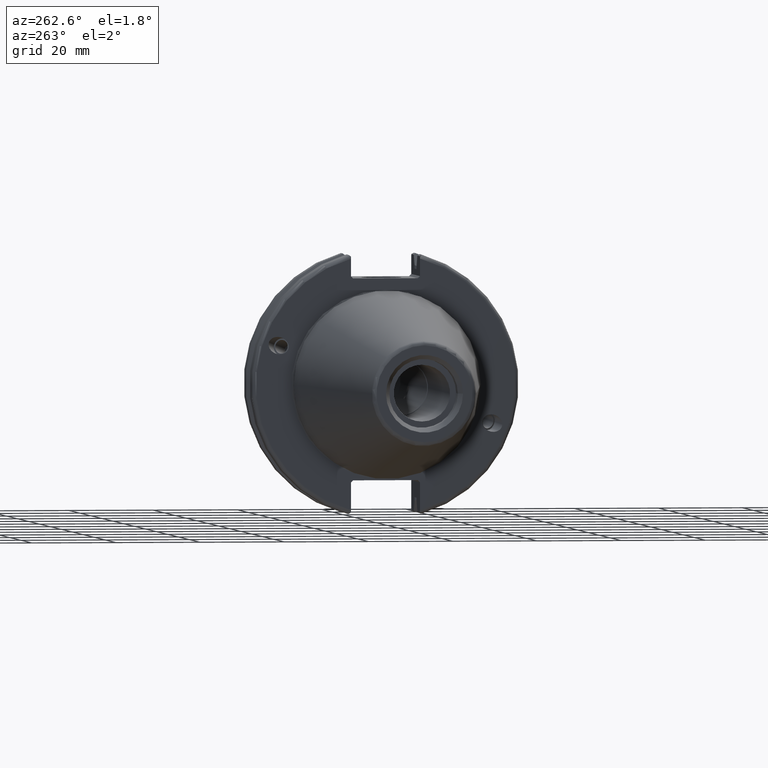
[diagram: clean part render]
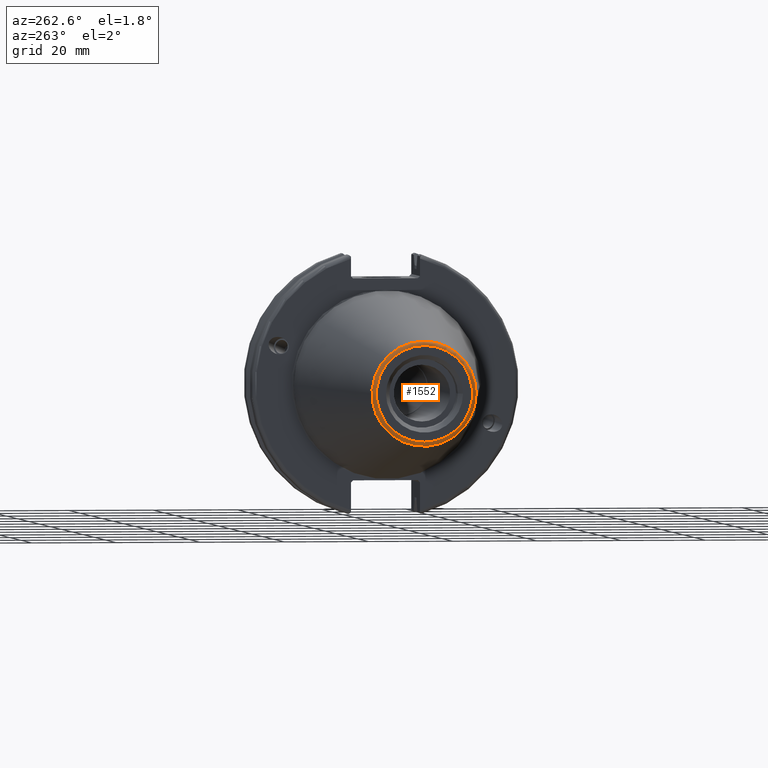
[diagram: same view with one face highlighted and labeled with its STEP entity id]
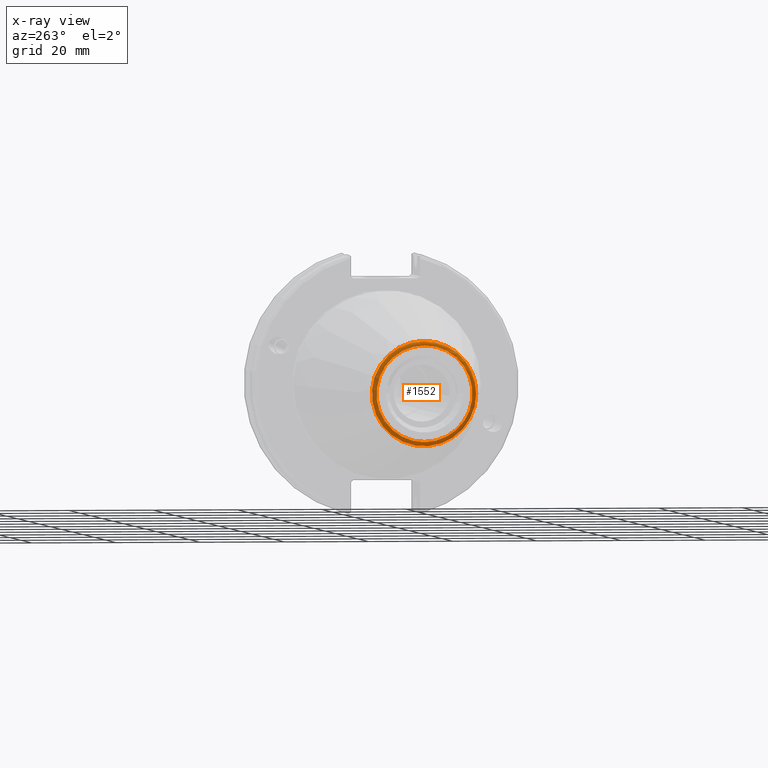
[diagram: x-ray of the same camera — body ghosted, the highlighted face saturated]
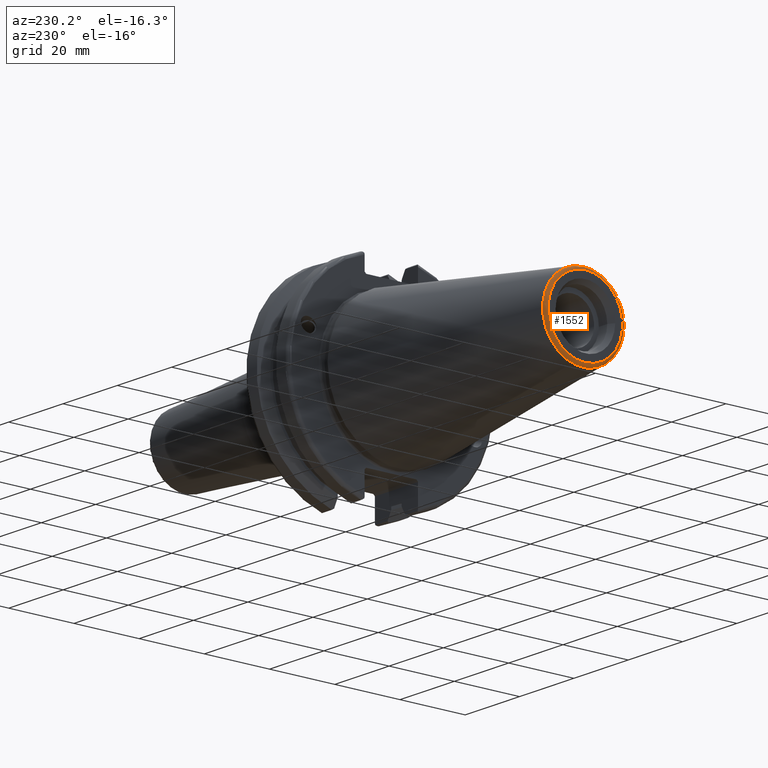
[diagram: same view with one face highlighted and labeled with its STEP entity id]
A machine part, auxiliary view. The second image highlights one B-rep face of the part: STEP entity #1552.
The next image is the same camera in x-ray: the body ghosted, the highlighted face saturated — about 0% of this face is hidden behind the body in this view.
A second angle (auxiliary view) of the same face is appended — the face is thin or edge-on in the first view.
In plain terms, the highlighted toroidal blend (fillet) surface has major radius 11.4071 mm and minor (blend) radius 1 mm.
Its self-contained STEP definition (entity closure, byte-faithful):
#419=FACE_OUTER_BOUND('',#520,.T.);
#520=EDGE_LOOP('',(#1347,#1348,#1349,#1350,#1351));
#613=CIRCLE('',#1741,12.3966635780937);
#614=CIRCLE('',#1742,12.3966635780937);
#615=CIRCLE('',#1743,1.);
#616=CIRCLE('',#1744,11.4071305970304);
#769=VERTEX_POINT('',#2941);
#770=VERTEX_POINT('',#2942);
#771=VERTEX_POINT('',#2945);
#979=EDGE_CURVE('',#769,#770,#613,.T.);
#980=EDGE_CURVE('',#770,#769,#614,.T.);
#981=EDGE_CURVE('',#769,#771,#615,.T.);
#982=EDGE_CURVE('',#771,#771,#616,.T.);
#1347=ORIENTED_EDGE('',*,*,#979,.T.);
#1348=ORIENTED_EDGE('',*,*,#980,.T.);
#1349=ORIENTED_EDGE('',*,*,#981,.T.);
#1350=ORIENTED_EDGE('',*,*,#982,.T.);
#1351=ORIENTED_EDGE('',*,*,#981,.F.);
#1494=TOROIDAL_SURFACE('',#1740,11.4071305970304,1.);
#1552=ADVANCED_FACE('',(#419),#1494,.T.);
#1740=AXIS2_PLACEMENT_3D('',#2940,#2132,#2133);
#1741=AXIS2_PLACEMENT_3D('',#2943,#2134,#2135);
#1742=AXIS2_PLACEMENT_3D('',#2944,#2136,#2137);
#1743=AXIS2_PLACEMENT_3D('',#2946,#2138,#2139);
#1744=AXIS2_PLACEMENT_3D('',#2947,#2140,#2141);
#2132=DIRECTION('center_axis',(1.,0.,0.));
#2133=DIRECTION('ref_axis',(0.,0.,-1.));
#2134=DIRECTION('center_axis',(-1.,0.,0.));
#2135=DIRECTION('ref_axis',(0.,-1.,3.06161699786838E-17));
#2136=DIRECTION('center_axis',(-1.,0.,0.));
#2137=DIRECTION('ref_axis',(0.,-1.,3.06161699786838E-17));
#2138=DIRECTION('center_axis',(0.,-1.,-1.22464679914735E-16));
#2139=DIRECTION('ref_axis',(0.,-1.22464679914735E-16,1.));
#2140=DIRECTION('center_axis',(1.,0.,0.));
#2141=DIRECTION('ref_axis',(0.,-1.,1.83697019872103E-16));
#2940=CARTESIAN_POINT('Origin',(-67.25,0.,0.));
#2941=CARTESIAN_POINT('',(-67.3943068930717,-1.5181534371019E-15,12.3966635780937));
#2942=CARTESIAN_POINT('',(-67.3943068930718,-12.3966635780937,-1.5181534371019E-15));
#2943=CARTESIAN_POINT('Origin',(-67.3943068930717,0.,-1.89769179637738E-15));
#2944=CARTESIAN_POINT('Origin',(-67.3943068930717,0.,-1.89769179637738E-15));
#2945=CARTESIAN_POINT('',(-68.25,-1.39697059731091E-15,11.4071305970304));
#2946=CARTESIAN_POINT('Origin',(-67.25,-1.39697059731091E-15,11.4071305970304));
#2947=CARTESIAN_POINT('Origin',(-68.25,0.,0.));